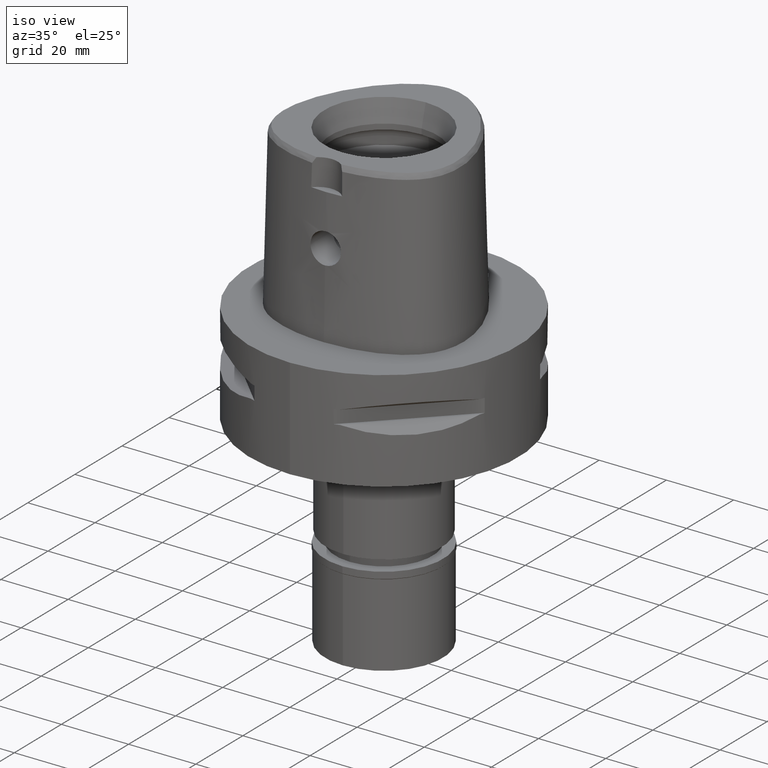
[diagram: clean part render]
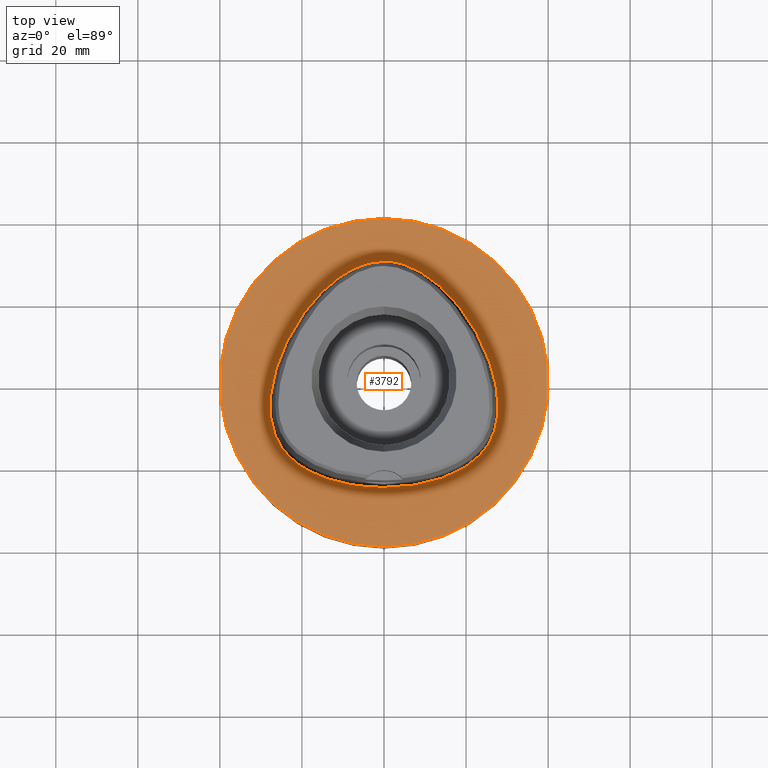
[diagram: tour spotlight — one face highlighted and labeled with its STEP entity id]
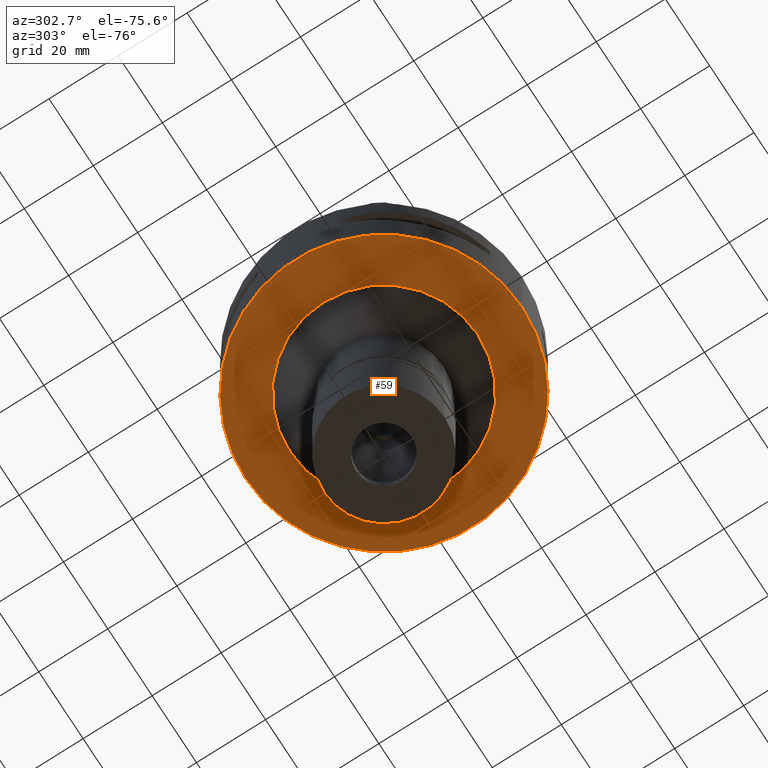
[diagram: tour spotlight — one face highlighted and labeled with its STEP entity id]
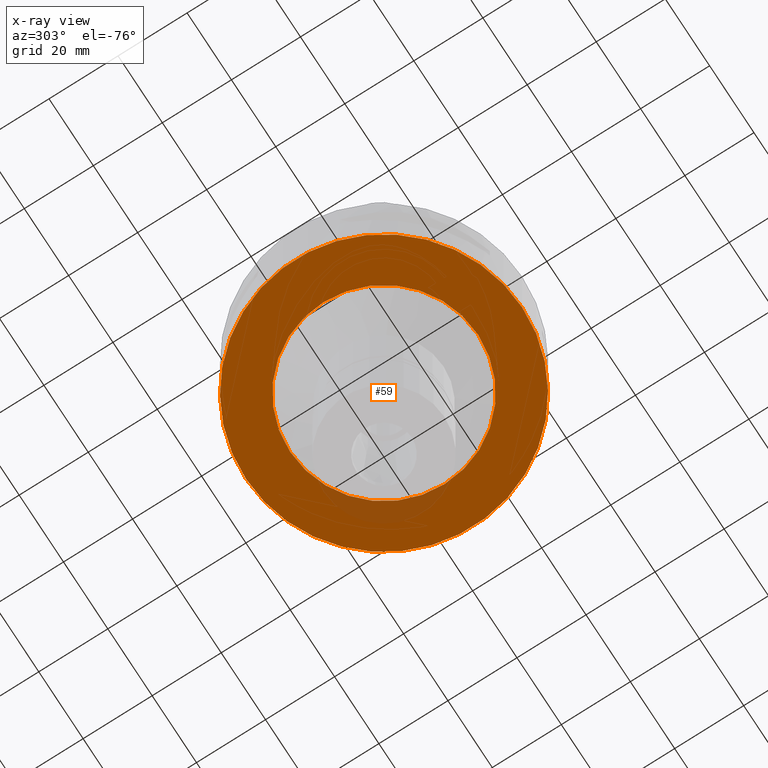
[diagram: x-ray of the same camera — body ghosted, this tour face saturated]
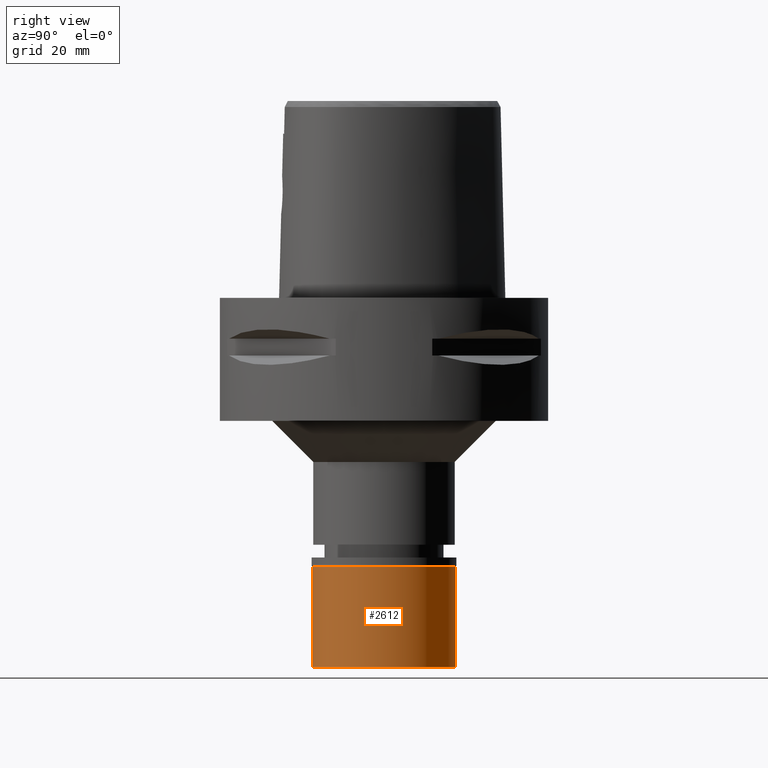
[diagram: tour spotlight — one face highlighted and labeled with its STEP entity id]
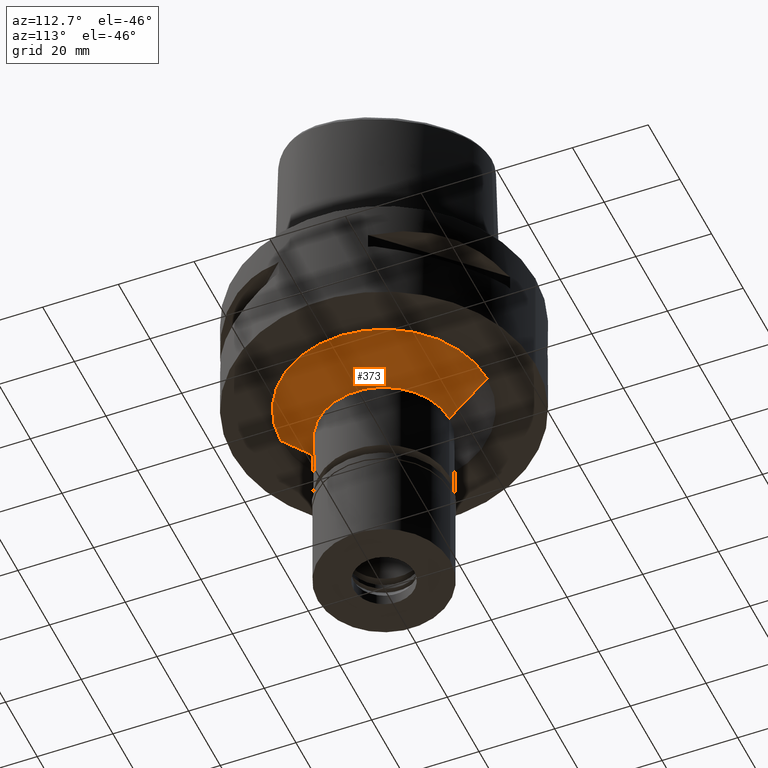
[diagram: tour spotlight — one face highlighted and labeled with its STEP entity id]
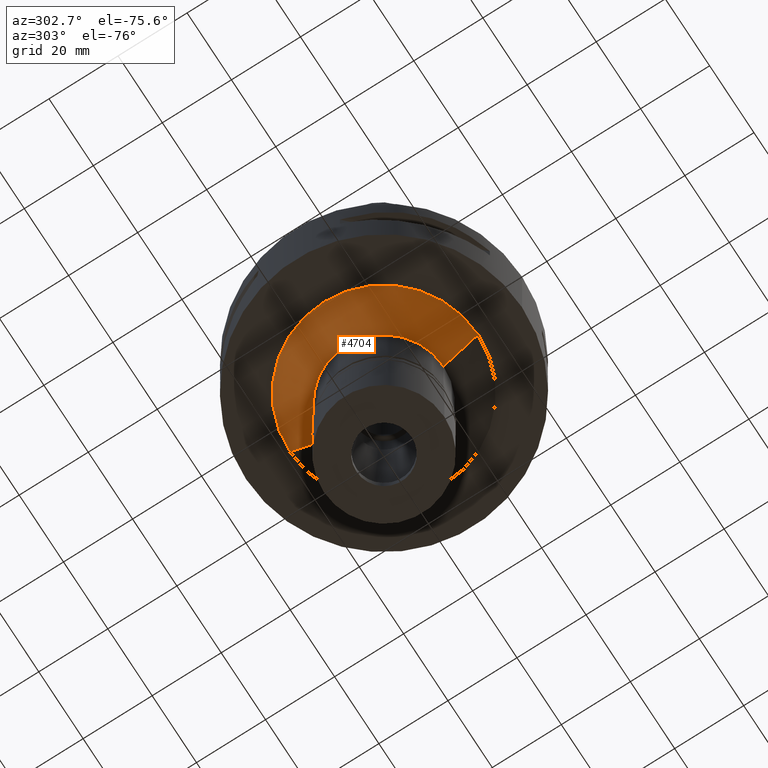
[diagram: tour spotlight — one face highlighted and labeled with its STEP entity id]
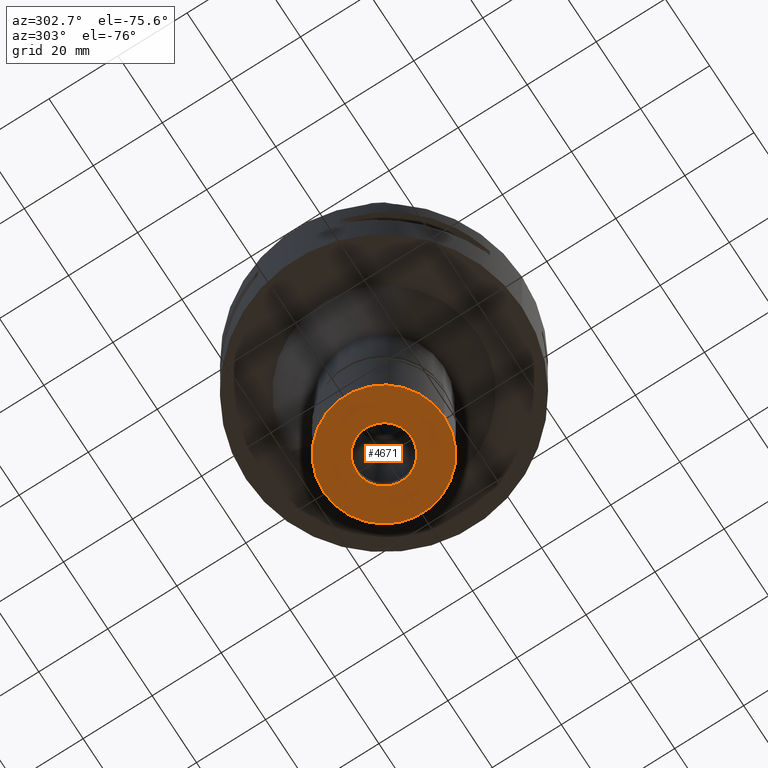
[diagram: tour spotlight — one face highlighted and labeled with its STEP entity id]
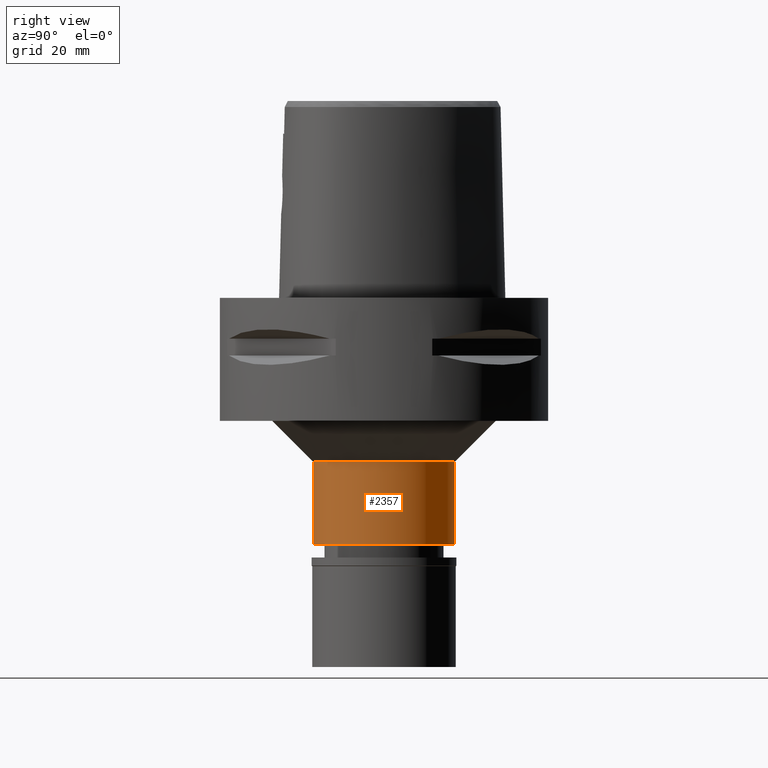
[diagram: tour spotlight — one face highlighted and labeled with its STEP entity id]
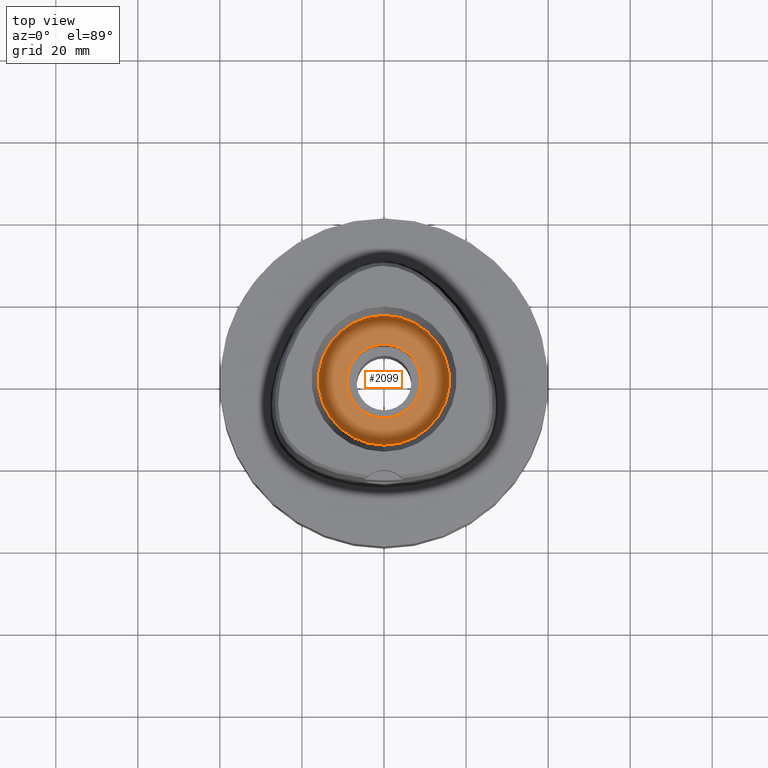
[diagram: tour spotlight — one face highlighted and labeled with its STEP entity id]
A machine part: a face-by-face anatomy tour. The part has 95 B-rep faces; the first image is the clean iso view, then the 8 largest visible faces are spotlighted one at a time (largest first), each with its STEP entity span.

Face 1 — top view, entity #3792. In plain terms, the highlighted planar face has unit normal (0, 0, -1).
Definition (entity closure, byte-faithful):
#254 = CARTESIAN_POINT ( 'NONE',  ( -24.77458489266242836, -16.12173825018081885, 2.094819869652431166E-06 ) ) ;
#320 = CARTESIAN_POINT ( 'NONE',  ( 27.85475986892180700, -5.337968750715377908, 1.137765652905239205E-06 ) ) ;
#396 = CARTESIAN_POINT ( 'NONE',  ( 3.149084868366645917, 29.34015622204375262, 1.137765652905239205E-06 ) ) ;
#585 = CARTESIAN_POINT ( 'NONE',  ( 0.0000000000000000000, -40.00000000000000000, 1.065814103639999922E-14 ) ) ;
#642 = CARTESIAN_POINT ( 'NONE',  ( -26.34912732414720082, -13.39455076017427793, 2.094819869652431166E-06 ) ) ;
#693 = CIRCLE ( 'NONE', #4600, 40.00000000000000000 ) ;
#730 = CARTESIAN_POINT ( 'NONE',  ( 21.42129057635563782, -19.59889646161694188, 1.137765652905239205E-06 ) ) ;
#1031 = CARTESIAN_POINT ( 'NONE',  ( -13.21796077085598853, 24.04386714781985290, 2.094819869652431166E-06 ) ) ;
#1070 = CARTESIAN_POINT ( 'NONE',  ( 15.29776365249906966, -22.96525387969474252, 1.137765652905239205E-06 ) ) ;
#1085 = CARTESIAN_POINT ( 'NONE',  ( -22.33885461213397861, 12.89734372370515914, 2.094819869652431166E-06 ) ) ;
#1150 = CARTESIAN_POINT ( 'NONE',  ( 13.21796078665989960, 24.04386716594249762, 1.137765652905239205E-06 ) ) ;
#1160 = CARTESIAN_POINT ( 'NONE',  ( -21.42129056182097457, -19.59889644248153218, 2.094819869652431166E-06 ) ) ;
#1168 = FACE_OUTER_BOUND ( 'NONE', #4169, .T. ) ;
#1186 = CARTESIAN_POINT ( 'NONE',  ( -11.74025984106811649, -24.13566401186329102, 2.094819869652431166E-06 ) ) ;
#1369 = CARTESIAN_POINT ( 'NONE',  ( -17.75297947105729790, 19.52218746656008719, 2.094819869652431166E-06 ) ) ;
#1416 = CARTESIAN_POINT ( 'NONE',  ( -3.149084863199506756, 29.34015619852094048, 2.094819869652431166E-06 ) ) ;
#1477 = CARTESIAN_POINT ( 'NONE',  ( 6.691850459915713145, -25.24546872174392220, 1.137765652905238994E-06 ) ) ;
#1507 = ORIENTED_EDGE ( 'NONE', *, *, #2330, .F. ) ;
#1530 = ORIENTED_EDGE ( 'NONE', *, *, #2038, .F. ) ;
#1539 = CARTESIAN_POINT ( 'NONE',  ( -1.924424295540000113E-11, -25.57499999999999929, 1.155372094292999947E-13 ) ) ;
#1656 = CARTESIAN_POINT ( 'NONE',  ( 0.0000000000000000000, 1.273020347714000000E-14, 1.065814103639999922E-14 ) ) ;
#1705 = DIRECTION ( 'NONE',  ( 0.0000000000000000000, 0.0000000000000000000, -1.000000000000000000 ) ) ;
#1797 = CARTESIAN_POINT ( 'NONE',  ( 4.354908547475000121E-11, 29.57499999998999840, 1.090979158864999866E-13 ) ) ;
#1823 = CARTESIAN_POINT ( 'NONE',  ( -23.43253024973375176, -17.76420406497843274, 2.094819869652431166E-06 ) ) ;
#1936 = EDGE_LOOP ( 'NONE', ( #2841, #1530 ) ) ;
#1949 = CARTESIAN_POINT ( 'NONE',  ( -6.691850456626842636, -25.24546869795837267, 2.094819869652431166E-06 ) ) ;
#2038 = EDGE_CURVE ( 'NONE', #2564, #4703, #2474, .T. ) ;
#2164 = CARTESIAN_POINT ( 'NONE',  ( -25.20914245119653074, 6.827421855213088087, 2.094819869652431166E-06 ) ) ;
#2254 = CARTESIAN_POINT ( 'NONE',  ( 2.676740183967310394, -25.57499997155843730, 1.137765652905239205E-06 ) ) ;
#2261 = CARTESIAN_POINT ( 'NONE',  ( 4.354908547475000121E-11, 29.57499999998999840, 1.090979158864999866E-13 ) ) ;
#2272 = CARTESIAN_POINT ( 'NONE',  ( -27.68378748623397811, -8.751933587140674931, 2.094819869652431166E-06 ) ) ;
#2306 = CARTESIAN_POINT ( 'NONE',  ( 25.20914247343074521, 6.827421864252392503, 1.137765652905239205E-06 ) ) ;
#2330 = EDGE_CURVE ( 'NONE', #2611, #4700, #693, .T. ) ;
#2351 = CARTESIAN_POINT ( 'NONE',  ( 0.0000000000000000000, 1.224646799146999965E-14, 0.0000000000000000000 ) ) ;
#2474 = B_SPLINE_CURVE_WITH_KNOTS ( 'NONE', 3,
 ( #3910, #2254, #1477, #3111, #1070, #4631, #730, #3886, #2686, #4197, #3010, #3399, #3805, #320, #4653, #5006, #2306, #2736, #4269, #1150, #2660, #3032, #396, #3830, #4930 ),
 .UNSPECIFIED., .F., .F.,
 ( 4, 1, 1, 1, 1, 1, 1, 1, 1, 1, 1, 1, 1, 1, 1, 1, 1, 1, 1, 1, 1, 1, 4 ),
 ( 0.0000000000000000000, 0.08333333333348000305, 0.1250000000001000033, 0.1666666666668000230, 0.2083333333334000115, 0.2500000000000000000, 0.2916666666666999919, 0.3125000000000000000, 0.3333333333333000081, 0.3541666666666999919, 0.3750000000000000000, 0.4166666666666000163, 0.4583333333332000326, 0.4999999999998999689, 0.5416666666666000163, 0.5833333333331000015, 0.6666666666664999852, 0.7499999999997000177, 0.8333333333329999704, 0.8749999999995999866, 0.9166666666663000340, 0.9583333333329000503, 1.000000000000000000 ),
 .UNSPECIFIED. ) ;
#2480 = AXIS2_PLACEMENT_3D ( 'NONE', #2351, #1705, #4776 ) ;
#2564 = VERTEX_POINT ( 'NONE', #2596 ) ;
#2596 = CARTESIAN_POINT ( 'NONE',  ( -1.924424295540000113E-11, -25.57499999999999929, 1.155372094292999947E-13 ) ) ;
#2611 = VERTEX_POINT ( 'NONE', #585 ) ;
#2649 = CARTESIAN_POINT ( 'NONE',  ( -1.049694954250744772, 29.57499994764077300, 2.094819869652431166E-06 ) ) ;
#2660 = CARTESIAN_POINT ( 'NONE',  ( 9.304563391730813038, 26.79191403815369199, 1.137765652905239205E-06 ) ) ;
#2686 = CARTESIAN_POINT ( 'NONE',  ( 24.77458491197820933, -16.12173826436910673, 1.137765652905239205E-06 ) ) ;
#2727 = FACE_BOUND ( 'NONE', #1936, .T. ) ;
#2736 = CARTESIAN_POINT ( 'NONE',  ( 22.33885463294038232, 12.89734373572265724, 1.137765652905239205E-06 ) ) ;
#2749 = DIRECTION ( 'NONE',  ( 0.0000000000000000000, 1.000000000000000000, 0.0000000000000000000 ) ) ;
#2812 = ORIENTED_EDGE ( 'NONE', *, *, #4347, .F. ) ;
#2841 = ORIENTED_EDGE ( 'NONE', *, *, #4145, .F. ) ;
#2972 = CARTESIAN_POINT ( 'NONE',  ( -27.85475984492790147, -5.337968751317453631, 2.094819869652431166E-06 ) ) ;
#3001 = CARTESIAN_POINT ( 'NONE',  ( -9.304563379213405483, 26.79191401767740999, 2.094819869652431166E-06 ) ) ;
#3010 = CARTESIAN_POINT ( 'NONE',  ( 26.34912734610190910, -13.39455076980321380, 1.137765652905239205E-06 ) ) ;
#3032 = CARTESIAN_POINT ( 'NONE',  ( 6.262496933729663873, 28.35083005178260152, 1.137765652905239205E-06 ) ) ;
#3048 = CARTESIAN_POINT ( 'NONE',  ( -15.29776364378016673, -22.96525385735406388, 2.094819869652431166E-06 ) ) ;
#3111 = CARTESIAN_POINT ( 'NONE',  ( 11.74025984732032768, -24.13566403500089663, 1.137765652905239205E-06 ) ) ;
#3116 = CARTESIAN_POINT ( 'NONE',  ( 0.0000000000000000000, 40.00000000000000000, 1.065814103639999922E-14 ) ) ;
#3215 = DIRECTION ( 'NONE',  ( 0.0000000000000000000, 0.0000000000000000000, -1.000000000000000000 ) ) ;
#3288 = B_SPLINE_CURVE_WITH_KNOTS ( 'NONE', 3,
 ( #1797, #2649, #1416, #3357, #3001, #1031, #1369, #1085, #2164, #4890, #4183, #2972, #2272, #4510, #642, #3764, #254, #1823, #1160, #3533, #3048, #1186, #1949, #4621, #1539 ),
 .UNSPECIFIED., .F., .F.,
 ( 4, 1, 1, 1, 1, 1, 1, 1, 1, 1, 1, 1, 1, 1, 1, 1, 1, 1, 1, 1, 1, 1, 4 ),
 ( 0.0000000000000000000, 0.04166666666721000056, 0.08333333333384000674, 0.1250000000004999889, 0.1666666666671000052, 0.2500000000004000134, 0.3333333333335999904, 0.4166666666668999985, 0.4583333333335000148, 0.5000000000001999512, 0.5416666666667999674, 0.5833333333333999837, 0.6250000000000000000, 0.6458333333333000637, 0.6666666666667000474, 0.6875000000000000000, 0.7083333333333000637, 0.7499999999999000799, 0.7916666666666000163, 0.8333333333332000326, 0.8749999999998000488, 0.9166666666664999852, 1.000000000000000000 ),
 .UNSPECIFIED. ) ;
#3357 = CARTESIAN_POINT ( 'NONE',  ( -6.262496924424714173, 28.35083002961578202, 2.094819869652431166E-06 ) ) ;
#3399 = CARTESIAN_POINT ( 'NONE',  ( 27.10051714624793817, -11.41106444530676356, 1.137765652905239205E-06 ) ) ;
#3436 = CARTESIAN_POINT ( 'NONE',  ( 0.0000000000000000000, 1.273020347714000000E-14, 1.065814103639999922E-14 ) ) ;
#3509 = DIRECTION ( 'NONE',  ( 0.0000000000000000000, 0.0000000000000000000, -1.000000000000000000 ) ) ;
#3533 = CARTESIAN_POINT ( 'NONE',  ( -18.55019646571943426, -21.45394526636055588, 2.094819869652431166E-06 ) ) ;
#3692 = AXIS2_PLACEMENT_3D ( 'NONE', #3436, #3509, #2749 ) ;
#3764 = CARTESIAN_POINT ( 'NONE',  ( -25.63812385315753772, -14.80217770814203782, 2.094819869652431166E-06 ) ) ;
#3770 = CIRCLE ( 'NONE', #3692, 40.00000000000000000 ) ;
#3792 = ADVANCED_FACE ( 'NONE', ( #1168, #2727 ), #4261, .F. ) ;
#3805 = CARTESIAN_POINT ( 'NONE',  ( 27.68378751008365768, -8.751933590160039245, 1.137765652905239205E-06 ) ) ;
#3830 = CARTESIAN_POINT ( 'NONE',  ( 1.049694956043448535, 29.57499997155296967, 1.137765652905239205E-06 ) ) ;
#3886 = CARTESIAN_POINT ( 'NONE',  ( 23.43253026698222641, -17.76420408169925125, 1.137765652905239205E-06 ) ) ;
#3910 = CARTESIAN_POINT ( 'NONE',  ( -1.924424295540000113E-11, -25.57499999999999929, 1.155372094292999947E-13 ) ) ;
#4145 = EDGE_CURVE ( 'NONE', #4703, #2564, #3288, .T. ) ;
#4169 = EDGE_LOOP ( 'NONE', ( #2812, #1507 ) ) ;
#4183 = CARTESIAN_POINT ( 'NONE',  ( -27.53737506671863144, -1.765625007924023215, 2.094819869652431166E-06 ) ) ;
#4197 = CARTESIAN_POINT ( 'NONE',  ( 25.63812387391595138, -14.80217772012314725, 1.137765652905239205E-06 ) ) ;
#4261 = PLANE ( 'NONE',  #2480 ) ;
#4269 = CARTESIAN_POINT ( 'NONE',  ( 17.75297948961959449, 19.52218748183531005, 1.137765652905239205E-06 ) ) ;
#4347 = EDGE_CURVE ( 'NONE', #4700, #2611, #3770, .T. ) ;
#4510 = CARTESIAN_POINT ( 'NONE',  ( -27.10051712314374228, -11.41106443872967091, 2.094819869652431166E-06 ) ) ;
#4600 = AXIS2_PLACEMENT_3D ( 'NONE', #1656, #3215, #4754 ) ;
#4621 = CARTESIAN_POINT ( 'NONE',  ( -2.676740182675434454, -25.57499994762766704, 2.094819869652431166E-06 ) ) ;
#4631 = CARTESIAN_POINT ( 'NONE',  ( 18.55019647718501474, -21.45394528744020235, 1.137765652905239205E-06 ) ) ;
#4653 = CARTESIAN_POINT ( 'NONE',  ( 27.53737509041933507, -1.765625004304363532, 1.137765652905239205E-06 ) ) ;
#4700 = VERTEX_POINT ( 'NONE', #3116 ) ;
#4703 = VERTEX_POINT ( 'NONE', #2261 ) ;
#4754 = DIRECTION ( 'NONE',  ( 0.0000000000000000000, -1.000000000000000000, 0.0000000000000000000 ) ) ;
#4776 = DIRECTION ( 'NONE',  ( 0.0000000000000000000, -1.000000000000000000, 0.0000000000000000000 ) ) ;
#4890 = CARTESIAN_POINT ( 'NONE',  ( -26.77222809200315012, 1.900468736539229209, 2.094819869652431166E-06 ) ) ;
#4930 = CARTESIAN_POINT ( 'NONE',  ( 4.354908547475000121E-11, 29.57499999998999840, 1.090979158864999866E-13 ) ) ;
#5006 = CARTESIAN_POINT ( 'NONE',  ( 26.77222811516928047, 1.900468742689392920, 1.137765652905239205E-06 ) ) ;

Face 2 — auxiliary view, entity #59. An x-ray twin of the same camera follows (body ghosted, this face saturated) — the face is partly hidden behind the body. In plain terms, the highlighted planar face has unit normal (0, 0, -1).
Definition (entity closure, byte-faithful):
#59 = ADVANCED_FACE ( 'NONE', ( #3329, #2431 ), #1625, .T. ) ;
#108 = AXIS2_PLACEMENT_3D ( 'NONE', #4739, #1258, #4057 ) ;
#394 = ORIENTED_EDGE ( 'NONE', *, *, #3538, .F. ) ;
#416 = AXIS2_PLACEMENT_3D ( 'NONE', #3753, #4879, #1405 ) ;
#537 = DIRECTION ( 'NONE',  ( 0.0000000000000000000, 0.0000000000000000000, 1.000000000000000000 ) ) ;
#572 = CIRCLE ( 'NONE', #416, 40.00000000000000000 ) ;
#608 = ORIENTED_EDGE ( 'NONE', *, *, #3981, .F. ) ;
#921 = DIRECTION ( 'NONE',  ( 0.0000000000000000000, -1.000000000000000000, 0.0000000000000000000 ) ) ;
#1069 = VERTEX_POINT ( 'NONE', #4002 ) ;
#1130 = EDGE_LOOP ( 'NONE', ( #608, #1641 ) ) ;
#1258 = DIRECTION ( 'NONE',  ( 0.0000000000000000000, 0.0000000000000000000, -1.000000000000000000 ) ) ;
#1405 = DIRECTION ( 'NONE',  ( 0.0000000000000000000, 1.000000000000000000, 0.0000000000000000000 ) ) ;
#1625 = PLANE ( 'NONE',  #4188 ) ;
#1641 = ORIENTED_EDGE ( 'NONE', *, *, #2980, .F. ) ;
#1765 = CARTESIAN_POINT ( 'NONE',  ( 0.0000000000000000000, -27.25000000000000000, -30.00000000000000000 ) ) ;
#1774 = DIRECTION ( 'NONE',  ( 0.0000000000000000000, 0.0000000000000000000, -1.000000000000000000 ) ) ;
#1938 = CARTESIAN_POINT ( 'NONE',  ( 0.0000000000000000000, -40.00000000000000000, -30.00000000000000000 ) ) ;
#2007 = CARTESIAN_POINT ( 'NONE',  ( 0.0000000000000000000, 0.0000000000000000000, -30.00000000000000000 ) ) ;
#2026 = VERTEX_POINT ( 'NONE', #1938 ) ;
#2057 = CIRCLE ( 'NONE', #3602, 40.00000000000000000 ) ;
#2223 = AXIS2_PLACEMENT_3D ( 'NONE', #4535, #1774, #4110 ) ;
#2343 = CIRCLE ( 'NONE', #108, 27.25000000000000000 ) ;
#2431 = FACE_BOUND ( 'NONE', #1130, .T. ) ;
#2858 = DIRECTION ( 'NONE',  ( 0.0000000000000000000, 0.0000000000000000000, -1.000000000000000000 ) ) ;
#2980 = EDGE_CURVE ( 'NONE', #3491, #1069, #2343, .T. ) ;
#3164 = EDGE_LOOP ( 'NONE', ( #394, #3398 ) ) ;
#3329 = FACE_OUTER_BOUND ( 'NONE', #3164, .T. ) ;
#3386 = EDGE_CURVE ( 'NONE', #2026, #3648, #2057, .T. ) ;
#3398 = ORIENTED_EDGE ( 'NONE', *, *, #3386, .F. ) ;
#3491 = VERTEX_POINT ( 'NONE', #1765 ) ;
#3538 = EDGE_CURVE ( 'NONE', #3648, #2026, #572, .T. ) ;
#3602 = AXIS2_PLACEMENT_3D ( 'NONE', #4403, #537, #921 ) ;
#3648 = VERTEX_POINT ( 'NONE', #3904 ) ;
#3753 = CARTESIAN_POINT ( 'NONE',  ( 0.0000000000000000000, 1.273020347714000000E-14, -30.00000000000000000 ) ) ;
#3904 = CARTESIAN_POINT ( 'NONE',  ( 0.0000000000000000000, 40.00000000000000000, -30.00000000000000000 ) ) ;
#3978 = DIRECTION ( 'NONE',  ( 0.0000000000000000000, -1.000000000000000000, 0.0000000000000000000 ) ) ;
#3981 = EDGE_CURVE ( 'NONE', #1069, #3491, #4400, .T. ) ;
#4002 = CARTESIAN_POINT ( 'NONE',  ( 0.0000000000000000000, 27.25000000000000000, -30.00000000000000000 ) ) ;
#4057 = DIRECTION ( 'NONE',  ( 0.0000000000000000000, -1.000000000000000000, 0.0000000000000000000 ) ) ;
#4110 = DIRECTION ( 'NONE',  ( 0.0000000000000000000, 1.000000000000000000, 0.0000000000000000000 ) ) ;
#4188 = AXIS2_PLACEMENT_3D ( 'NONE', #2007, #2858, #3978 ) ;
#4400 = CIRCLE ( 'NONE', #2223, 27.25000000000000000 ) ;
#4403 = CARTESIAN_POINT ( 'NONE',  ( 0.0000000000000000000, 1.273020347714000000E-14, -30.00000000000000000 ) ) ;
#4535 = CARTESIAN_POINT ( 'NONE',  ( 0.0000000000000000000, 0.0000000000000000000, -30.00000000000000000 ) ) ;
#4739 = CARTESIAN_POINT ( 'NONE',  ( 0.0000000000000000000, 0.0000000000000000000, -30.00000000000000000 ) ) ;
#4879 = DIRECTION ( 'NONE',  ( 0.0000000000000000000, 0.0000000000000000000, 1.000000000000000000 ) ) ;

Face 3 — right view, entity #2612. In plain terms, the highlighted cylindrical surface (partial cylindrical patch) has radius 17.5 mm, axis along (0, 0, -1).
Definition (entity closure, byte-faithful):
#30 = AXIS2_PLACEMENT_3D ( 'NONE', #383, #3487, #4686 ) ;
#200 = CARTESIAN_POINT ( 'NONE',  ( 0.0000000000000000000, 0.0000000000000000000, 0.0000000000000000000 ) ) ;
#330 = CARTESIAN_POINT ( 'NONE',  ( 0.0000000000000000000, 0.0000000000000000000, -2.100000000000000089 ) ) ;
#383 = CARTESIAN_POINT ( 'NONE',  ( 0.0000000000000000000, 0.0000000000000000000, -26.70000000000000284 ) ) ;
#531 = VECTOR ( 'NONE', #4672, 1000.000000000000000 ) ;
#663 = FACE_OUTER_BOUND ( 'NONE', #2685, .T. ) ;
#1010 = EDGE_CURVE ( 'NONE', #3845, #2258, #1092, .T. ) ;
#1092 = LINE ( 'NONE', #1935, #531 ) ;
#1178 = CARTESIAN_POINT ( 'NONE',  ( 0.0000000000000000000, -17.50000000000000000, -2.100000000000000089 ) ) ;
#1681 = AXIS2_PLACEMENT_3D ( 'NONE', #330, #1993, #4964 ) ;
#1771 = DIRECTION ( 'NONE',  ( 0.0000000000000000000, 0.0000000000000000000, -1.000000000000000000 ) ) ;
#1786 = ORIENTED_EDGE ( 'NONE', *, *, #2765, .T. ) ;
#1832 = ORIENTED_EDGE ( 'NONE', *, *, #1010, .F. ) ;
#1935 = CARTESIAN_POINT ( 'NONE',  ( 0.0000000000000000000, 17.50000000000000000, -2.100000000000000089 ) ) ;
#1993 = DIRECTION ( 'NONE',  ( 0.0000000000000000000, 0.0000000000000000000, -1.000000000000000000 ) ) ;
#2258 = VERTEX_POINT ( 'NONE', #3931 ) ;
#2262 = CIRCLE ( 'NONE', #30, 17.50000000000000000 ) ;
#2582 = AXIS2_PLACEMENT_3D ( 'NONE', #200, #1771, #3330 ) ;
#2612 = ADVANCED_FACE ( 'NONE', ( #663 ), #3710, .T. ) ;
#2685 = EDGE_LOOP ( 'NONE', ( #1786, #3475, #3754, #1832 ) ) ;
#2705 = EDGE_CURVE ( 'NONE', #4061, #2258, #2262, .T. ) ;
#2765 = EDGE_CURVE ( 'NONE', #3845, #3929, #4270, .T. ) ;
#3330 = DIRECTION ( 'NONE',  ( 0.0000000000000000000, -1.000000000000000000, 0.0000000000000000000 ) ) ;
#3475 = ORIENTED_EDGE ( 'NONE', *, *, #4674, .T. ) ;
#3487 = DIRECTION ( 'NONE',  ( 0.0000000000000000000, 0.0000000000000000000, 1.000000000000000000 ) ) ;
#3710 = CYLINDRICAL_SURFACE ( 'NONE', #2582, 17.50000000000000000 ) ;
#3754 = ORIENTED_EDGE ( 'NONE', *, *, #2705, .T. ) ;
#3819 = CARTESIAN_POINT ( 'NONE',  ( 0.0000000000000000000, -17.50000000000000000, -26.70000000000000284 ) ) ;
#3835 = LINE ( 'NONE', #1178, #4405 ) ;
#3845 = VERTEX_POINT ( 'NONE', #4362 ) ;
#3929 = VERTEX_POINT ( 'NONE', #3999 ) ;
#3931 = CARTESIAN_POINT ( 'NONE',  ( 0.0000000000000000000, 17.50000000000000000, -26.70000000000000284 ) ) ;
#3999 = CARTESIAN_POINT ( 'NONE',  ( 0.0000000000000000000, -17.50000000000000000, -2.100000000000000089 ) ) ;
#4061 = VERTEX_POINT ( 'NONE', #3819 ) ;
#4270 = CIRCLE ( 'NONE', #1681, 17.50000000000000000 ) ;
#4362 = CARTESIAN_POINT ( 'NONE',  ( 0.0000000000000000000, 17.50000000000000000, -2.100000000000000089 ) ) ;
#4405 = VECTOR ( 'NONE', #4613, 1000.000000000000000 ) ;
#4613 = DIRECTION ( 'NONE',  ( 0.0000000000000000000, 0.0000000000000000000, -1.000000000000000000 ) ) ;
#4672 = DIRECTION ( 'NONE',  ( 0.0000000000000000000, 0.0000000000000000000, -1.000000000000000000 ) ) ;
#4674 = EDGE_CURVE ( 'NONE', #3929, #4061, #3835, .T. ) ;
#4686 = DIRECTION ( 'NONE',  ( 0.0000000000000000000, -1.000000000000000000, 0.0000000000000000000 ) ) ;
#4964 = DIRECTION ( 'NONE',  ( 0.0000000000000000000, 1.000000000000000000, 0.0000000000000000000 ) ) ;

Face 4 — auxiliary view, entity #373. In plain terms, the highlighted conical surface has half-angle 45 deg.
Definition (entity closure, byte-faithful):
#202 = CIRCLE ( 'NONE', #4682, 17.25000000000000000 ) ;
#225 = DIRECTION ( 'NONE',  ( 0.0000000000000000000, 1.000000000000000000, 0.0000000000000000000 ) ) ;
#232 = CARTESIAN_POINT ( 'NONE',  ( 0.0000000000000000000, 0.0000000000000000000, -40.00000000000000000 ) ) ;
#373 = ADVANCED_FACE ( 'NONE', ( #1464 ), #4349, .T. ) ;
#671 = DIRECTION ( 'NONE',  ( 0.0000000000000000000, 0.0000000000000000000, -1.000000000000000000 ) ) ;
#706 = ORIENTED_EDGE ( 'NONE', *, *, #3262, .F. ) ;
#962 = DIRECTION ( 'NONE',  ( 0.0000000000000000000, 1.000000000000000000, 0.0000000000000000000 ) ) ;
#1052 = VERTEX_POINT ( 'NONE', #1680 ) ;
#1069 = VERTEX_POINT ( 'NONE', #4002 ) ;
#1282 = EDGE_CURVE ( 'NONE', #1963, #1052, #202, .T. ) ;
#1410 = CARTESIAN_POINT ( 'NONE',  ( 0.0000000000000000000, 0.0000000000000000000, -35.00000000000000000 ) ) ;
#1464 = FACE_OUTER_BOUND ( 'NONE', #2722, .T. ) ;
#1546 = EDGE_CURVE ( 'NONE', #3491, #1052, #1841, .T. ) ;
#1680 = CARTESIAN_POINT ( 'NONE',  ( 0.0000000000000000000, -17.25000000000000000, -40.00000000000000000 ) ) ;
#1765 = CARTESIAN_POINT ( 'NONE',  ( 0.0000000000000000000, -27.25000000000000000, -30.00000000000000000 ) ) ;
#1774 = DIRECTION ( 'NONE',  ( 0.0000000000000000000, 0.0000000000000000000, -1.000000000000000000 ) ) ;
#1815 = CARTESIAN_POINT ( 'NONE',  ( 0.0000000000000000000, -27.25000000000000000, -30.00000000000000000 ) ) ;
#1841 = LINE ( 'NONE', #1815, #4441 ) ;
#1963 = VERTEX_POINT ( 'NONE', #2493 ) ;
#2159 = DIRECTION ( 'NONE',  ( 0.0000000000000000000, 0.7071067811865474617, -0.7071067811865474617 ) ) ;
#2178 = CARTESIAN_POINT ( 'NONE',  ( 0.0000000000000000000, 27.25000000000000000, -30.00000000000000000 ) ) ;
#2223 = AXIS2_PLACEMENT_3D ( 'NONE', #4535, #1774, #4110 ) ;
#2493 = CARTESIAN_POINT ( 'NONE',  ( 0.0000000000000000000, 17.25000000000000000, -40.00000000000000000 ) ) ;
#2537 = ORIENTED_EDGE ( 'NONE', *, *, #1282, .F. ) ;
#2587 = LINE ( 'NONE', #2178, #3523 ) ;
#2722 = EDGE_LOOP ( 'NONE', ( #4320, #2797, #2537, #706 ) ) ;
#2797 = ORIENTED_EDGE ( 'NONE', *, *, #1546, .T. ) ;
#3262 = EDGE_CURVE ( 'NONE', #1069, #1963, #2587, .T. ) ;
#3309 = AXIS2_PLACEMENT_3D ( 'NONE', #1410, #4531, #225 ) ;
#3491 = VERTEX_POINT ( 'NONE', #1765 ) ;
#3523 = VECTOR ( 'NONE', #3729, 1000.000000000000114 ) ;
#3729 = DIRECTION ( 'NONE',  ( 0.0000000000000000000, -0.7071067811865474617, -0.7071067811865474617 ) ) ;
#3981 = EDGE_CURVE ( 'NONE', #1069, #3491, #4400, .T. ) ;
#4002 = CARTESIAN_POINT ( 'NONE',  ( 0.0000000000000000000, 27.25000000000000000, -30.00000000000000000 ) ) ;
#4110 = DIRECTION ( 'NONE',  ( 0.0000000000000000000, 1.000000000000000000, 0.0000000000000000000 ) ) ;
#4320 = ORIENTED_EDGE ( 'NONE', *, *, #3981, .T. ) ;
#4349 = CONICAL_SURFACE ( 'NONE', #3309, 22.25000000000000000, 0.7853981633972997312 ) ;
#4400 = CIRCLE ( 'NONE', #2223, 27.25000000000000000 ) ;
#4441 = VECTOR ( 'NONE', #2159, 1000.000000000000114 ) ;
#4531 = DIRECTION ( 'NONE',  ( 0.0000000000000000000, 0.0000000000000000000, 1.000000000000000000 ) ) ;
#4535 = CARTESIAN_POINT ( 'NONE',  ( 0.0000000000000000000, 0.0000000000000000000, -30.00000000000000000 ) ) ;
#4682 = AXIS2_PLACEMENT_3D ( 'NONE', #232, #671, #962 ) ;

Face 5 — auxiliary view, entity #4704. In plain terms, the highlighted conical surface has half-angle 45 deg.
Definition (entity closure, byte-faithful):
#22 = CARTESIAN_POINT ( 'NONE',  ( 0.0000000000000000000, 0.0000000000000000000, -40.00000000000000000 ) ) ;
#108 = AXIS2_PLACEMENT_3D ( 'NONE', #4739, #1258, #4057 ) ;
#325 = DIRECTION ( 'NONE',  ( 0.0000000000000000000, 1.000000000000000000, 0.0000000000000000000 ) ) ;
#728 = DIRECTION ( 'NONE',  ( 0.0000000000000000000, 0.0000000000000000000, -1.000000000000000000 ) ) ;
#906 = EDGE_CURVE ( 'NONE', #1052, #1963, #3798, .T. ) ;
#1052 = VERTEX_POINT ( 'NONE', #1680 ) ;
#1069 = VERTEX_POINT ( 'NONE', #4002 ) ;
#1162 = ORIENTED_EDGE ( 'NONE', *, *, #1546, .F. ) ;
#1258 = DIRECTION ( 'NONE',  ( 0.0000000000000000000, 0.0000000000000000000, -1.000000000000000000 ) ) ;
#1323 = CONICAL_SURFACE ( 'NONE', #4165, 22.25000000000000000, 0.7853981633972997312 ) ;
#1546 = EDGE_CURVE ( 'NONE', #3491, #1052, #1841, .T. ) ;
#1594 = AXIS2_PLACEMENT_3D ( 'NONE', #22, #728, #5005 ) ;
#1680 = CARTESIAN_POINT ( 'NONE',  ( 0.0000000000000000000, -17.25000000000000000, -40.00000000000000000 ) ) ;
#1765 = CARTESIAN_POINT ( 'NONE',  ( 0.0000000000000000000, -27.25000000000000000, -30.00000000000000000 ) ) ;
#1815 = CARTESIAN_POINT ( 'NONE',  ( 0.0000000000000000000, -27.25000000000000000, -30.00000000000000000 ) ) ;
#1841 = LINE ( 'NONE', #1815, #4441 ) ;
#1891 = FACE_OUTER_BOUND ( 'NONE', #4722, .T. ) ;
#1963 = VERTEX_POINT ( 'NONE', #2493 ) ;
#2159 = DIRECTION ( 'NONE',  ( 0.0000000000000000000, 0.7071067811865474617, -0.7071067811865474617 ) ) ;
#2178 = CARTESIAN_POINT ( 'NONE',  ( 0.0000000000000000000, 27.25000000000000000, -30.00000000000000000 ) ) ;
#2343 = CIRCLE ( 'NONE', #108, 27.25000000000000000 ) ;
#2493 = CARTESIAN_POINT ( 'NONE',  ( 0.0000000000000000000, 17.25000000000000000, -40.00000000000000000 ) ) ;
#2587 = LINE ( 'NONE', #2178, #3523 ) ;
#2740 = CARTESIAN_POINT ( 'NONE',  ( 0.0000000000000000000, 0.0000000000000000000, -35.00000000000000000 ) ) ;
#2980 = EDGE_CURVE ( 'NONE', #3491, #1069, #2343, .T. ) ;
#3255 = ORIENTED_EDGE ( 'NONE', *, *, #3262, .T. ) ;
#3262 = EDGE_CURVE ( 'NONE', #1069, #1963, #2587, .T. ) ;
#3429 = DIRECTION ( 'NONE',  ( 0.0000000000000000000, 0.0000000000000000000, 1.000000000000000000 ) ) ;
#3491 = VERTEX_POINT ( 'NONE', #1765 ) ;
#3523 = VECTOR ( 'NONE', #3729, 1000.000000000000114 ) ;
#3724 = ORIENTED_EDGE ( 'NONE', *, *, #2980, .T. ) ;
#3729 = DIRECTION ( 'NONE',  ( 0.0000000000000000000, -0.7071067811865474617, -0.7071067811865474617 ) ) ;
#3798 = CIRCLE ( 'NONE', #1594, 17.25000000000000000 ) ;
#4002 = CARTESIAN_POINT ( 'NONE',  ( 0.0000000000000000000, 27.25000000000000000, -30.00000000000000000 ) ) ;
#4057 = DIRECTION ( 'NONE',  ( 0.0000000000000000000, -1.000000000000000000, 0.0000000000000000000 ) ) ;
#4165 = AXIS2_PLACEMENT_3D ( 'NONE', #2740, #3429, #325 ) ;
#4321 = ORIENTED_EDGE ( 'NONE', *, *, #906, .F. ) ;
#4441 = VECTOR ( 'NONE', #2159, 1000.000000000000114 ) ;
#4704 = ADVANCED_FACE ( 'NONE', ( #1891 ), #1323, .T. ) ;
#4722 = EDGE_LOOP ( 'NONE', ( #4321, #1162, #3724, #3255 ) ) ;
#4739 = CARTESIAN_POINT ( 'NONE',  ( 0.0000000000000000000, 0.0000000000000000000, -30.00000000000000000 ) ) ;
#5005 = DIRECTION ( 'NONE',  ( 0.0000000000000000000, -1.000000000000000000, 0.0000000000000000000 ) ) ;

Face 6 — auxiliary view, entity #4671. In plain terms, the highlighted planar face has unit normal (0, 0, -1).
Definition (entity closure, byte-faithful):
#30 = AXIS2_PLACEMENT_3D ( 'NONE', #383, #3487, #4686 ) ;
#120 = DIRECTION ( 'NONE',  ( 0.0000000000000000000, 1.000000000000000000, 0.0000000000000000000 ) ) ;
#383 = CARTESIAN_POINT ( 'NONE',  ( 0.0000000000000000000, 0.0000000000000000000, -26.70000000000000284 ) ) ;
#395 = ORIENTED_EDGE ( 'NONE', *, *, #2705, .F. ) ;
#776 = DIRECTION ( 'NONE',  ( 0.0000000000000000000, -1.000000000000000000, 0.0000000000000000000 ) ) ;
#839 = CARTESIAN_POINT ( 'NONE',  ( 0.0000000000000000000, 8.000000000000000000, -26.70000000000000284 ) ) ;
#990 = AXIS2_PLACEMENT_3D ( 'NONE', #1965, #4273, #3892 ) ;
#1025 = CARTESIAN_POINT ( 'NONE',  ( 0.0000000000000000000, -8.000000000000000000, -26.70000000000000284 ) ) ;
#1038 = EDGE_CURVE ( 'NONE', #1709, #2932, #1435, .T. ) ;
#1119 = AXIS2_PLACEMENT_3D ( 'NONE', #2625, #2168, #4114 ) ;
#1170 = DIRECTION ( 'NONE',  ( 0.0000000000000000000, 0.0000000000000000000, -1.000000000000000000 ) ) ;
#1237 = DIRECTION ( 'NONE',  ( 0.0000000000000000000, 0.0000000000000000000, 1.000000000000000000 ) ) ;
#1295 = EDGE_CURVE ( 'NONE', #2932, #1709, #4274, .T. ) ;
#1421 = EDGE_CURVE ( 'NONE', #2258, #4061, #2010, .T. ) ;
#1435 = CIRCLE ( 'NONE', #4677, 8.000000000000000000 ) ;
#1709 = VERTEX_POINT ( 'NONE', #1025 ) ;
#1937 = EDGE_LOOP ( 'NONE', ( #2376, #2473 ) ) ;
#1965 = CARTESIAN_POINT ( 'NONE',  ( 0.0000000000000000000, 0.0000000000000000000, -26.70000000000000284 ) ) ;
#2010 = CIRCLE ( 'NONE', #4605, 17.50000000000000000 ) ;
#2112 = CARTESIAN_POINT ( 'NONE',  ( 0.0000000000000000000, 0.0000000000000000000, -26.70000000000000284 ) ) ;
#2168 = DIRECTION ( 'NONE',  ( 0.0000000000000000000, 0.0000000000000000000, -1.000000000000000000 ) ) ;
#2258 = VERTEX_POINT ( 'NONE', #3931 ) ;
#2262 = CIRCLE ( 'NONE', #30, 17.50000000000000000 ) ;
#2376 = ORIENTED_EDGE ( 'NONE', *, *, #1295, .F. ) ;
#2473 = ORIENTED_EDGE ( 'NONE', *, *, #1038, .F. ) ;
#2625 = CARTESIAN_POINT ( 'NONE',  ( 0.0000000000000000000, 0.0000000000000000000, -26.70000000000000284 ) ) ;
#2705 = EDGE_CURVE ( 'NONE', #4061, #2258, #2262, .T. ) ;
#2932 = VERTEX_POINT ( 'NONE', #839 ) ;
#3487 = DIRECTION ( 'NONE',  ( 0.0000000000000000000, 0.0000000000000000000, 1.000000000000000000 ) ) ;
#3497 = CARTESIAN_POINT ( 'NONE',  ( 0.0000000000000000000, 0.0000000000000000000, -26.70000000000000284 ) ) ;
#3812 = FACE_OUTER_BOUND ( 'NONE', #5008, .T. ) ;
#3819 = CARTESIAN_POINT ( 'NONE',  ( 0.0000000000000000000, -17.50000000000000000, -26.70000000000000284 ) ) ;
#3892 = DIRECTION ( 'NONE',  ( 0.0000000000000000000, -1.000000000000000000, 0.0000000000000000000 ) ) ;
#3931 = CARTESIAN_POINT ( 'NONE',  ( 0.0000000000000000000, 17.50000000000000000, -26.70000000000000284 ) ) ;
#4061 = VERTEX_POINT ( 'NONE', #3819 ) ;
#4114 = DIRECTION ( 'NONE',  ( 0.0000000000000000000, 1.000000000000000000, 0.0000000000000000000 ) ) ;
#4174 = ORIENTED_EDGE ( 'NONE', *, *, #1421, .F. ) ;
#4273 = DIRECTION ( 'NONE',  ( 0.0000000000000000000, 0.0000000000000000000, -1.000000000000000000 ) ) ;
#4274 = CIRCLE ( 'NONE', #1119, 8.000000000000000000 ) ;
#4605 = AXIS2_PLACEMENT_3D ( 'NONE', #2112, #1237, #120 ) ;
#4656 = FACE_BOUND ( 'NONE', #1937, .T. ) ;
#4671 = ADVANCED_FACE ( 'NONE', ( #3812, #4656 ), #5010, .T. ) ;
#4677 = AXIS2_PLACEMENT_3D ( 'NONE', #3497, #1170, #776 ) ;
#4686 = DIRECTION ( 'NONE',  ( 0.0000000000000000000, -1.000000000000000000, 0.0000000000000000000 ) ) ;
#5008 = EDGE_LOOP ( 'NONE', ( #4174, #395 ) ) ;
#5010 = PLANE ( 'NONE',  #990 ) ;

Face 7 — right view, entity #2357. In plain terms, the highlighted cylindrical surface (partial cylindrical patch) has radius 17.25 mm, axis along (0, 0, -1).
Definition (entity closure, byte-faithful):
#42 = DIRECTION ( 'NONE',  ( 0.0000000000000000000, 0.0000000000000000000, -1.000000000000000000 ) ) ;
#202 = CIRCLE ( 'NONE', #4682, 17.25000000000000000 ) ;
#232 = CARTESIAN_POINT ( 'NONE',  ( 0.0000000000000000000, 0.0000000000000000000, -40.00000000000000000 ) ) ;
#248 = DIRECTION ( 'NONE',  ( 0.0000000000000000000, -1.000000000000000000, 0.0000000000000000000 ) ) ;
#360 = CARTESIAN_POINT ( 'NONE',  ( 0.0000000000000000000, -17.25000000000000000, -60.19999999999999574 ) ) ;
#542 = DIRECTION ( 'NONE',  ( 0.0000000000000000000, 0.0000000000000000000, -1.000000000000000000 ) ) ;
#592 = DIRECTION ( 'NONE',  ( 0.0000000000000000000, 0.0000000000000000000, -1.000000000000000000 ) ) ;
#609 = DIRECTION ( 'NONE',  ( 0.0000000000000000000, 0.0000000000000000000, 1.000000000000000000 ) ) ;
#671 = DIRECTION ( 'NONE',  ( 0.0000000000000000000, 0.0000000000000000000, -1.000000000000000000 ) ) ;
#698 = CARTESIAN_POINT ( 'NONE',  ( 0.0000000000000000000, 1.273020347714000000E-14, 3.950000000000000178 ) ) ;
#962 = DIRECTION ( 'NONE',  ( 0.0000000000000000000, 1.000000000000000000, 0.0000000000000000000 ) ) ;
#1052 = VERTEX_POINT ( 'NONE', #1680 ) ;
#1086 = VERTEX_POINT ( 'NONE', #3213 ) ;
#1198 = VECTOR ( 'NONE', #542, 1000.000000000000000 ) ;
#1236 = EDGE_LOOP ( 'NONE', ( #3138, #4297, #3957, #4652 ) ) ;
#1260 = CARTESIAN_POINT ( 'NONE',  ( 0.0000000000000000000, 17.25000000000000000, -40.00000000000000000 ) ) ;
#1281 = CIRCLE ( 'NONE', #1359, 17.25000000000000000 ) ;
#1282 = EDGE_CURVE ( 'NONE', #1963, #1052, #202, .T. ) ;
#1359 = AXIS2_PLACEMENT_3D ( 'NONE', #4152, #609, #248 ) ;
#1432 = EDGE_CURVE ( 'NONE', #1052, #4450, #2503, .T. ) ;
#1469 = FACE_OUTER_BOUND ( 'NONE', #1236, .T. ) ;
#1680 = CARTESIAN_POINT ( 'NONE',  ( 0.0000000000000000000, -17.25000000000000000, -40.00000000000000000 ) ) ;
#1704 = EDGE_CURVE ( 'NONE', #4450, #1086, #1281, .T. ) ;
#1963 = VERTEX_POINT ( 'NONE', #2493 ) ;
#2143 = VECTOR ( 'NONE', #42, 1000.000000000000000 ) ;
#2357 = ADVANCED_FACE ( 'NONE', ( #1469 ), #3023, .T. ) ;
#2493 = CARTESIAN_POINT ( 'NONE',  ( 0.0000000000000000000, 17.25000000000000000, -40.00000000000000000 ) ) ;
#2503 = LINE ( 'NONE', #3229, #1198 ) ;
#3002 = DIRECTION ( 'NONE',  ( 0.0000000000000000000, -1.000000000000000000, 0.0000000000000000000 ) ) ;
#3023 = CYLINDRICAL_SURFACE ( 'NONE', #4444, 17.25000000000000000 ) ;
#3138 = ORIENTED_EDGE ( 'NONE', *, *, #1282, .T. ) ;
#3213 = CARTESIAN_POINT ( 'NONE',  ( 0.0000000000000000000, 17.25000000000000000, -60.19999999999999574 ) ) ;
#3229 = CARTESIAN_POINT ( 'NONE',  ( 0.0000000000000000000, -17.25000000000000000, -40.00000000000000000 ) ) ;
#3421 = EDGE_CURVE ( 'NONE', #1963, #1086, #3943, .T. ) ;
#3943 = LINE ( 'NONE', #1260, #2143 ) ;
#3957 = ORIENTED_EDGE ( 'NONE', *, *, #1704, .T. ) ;
#4152 = CARTESIAN_POINT ( 'NONE',  ( 0.0000000000000000000, 1.273020347714000000E-14, -60.19999999999999574 ) ) ;
#4297 = ORIENTED_EDGE ( 'NONE', *, *, #1432, .T. ) ;
#4444 = AXIS2_PLACEMENT_3D ( 'NONE', #698, #592, #3002 ) ;
#4450 = VERTEX_POINT ( 'NONE', #360 ) ;
#4652 = ORIENTED_EDGE ( 'NONE', *, *, #3421, .F. ) ;
#4682 = AXIS2_PLACEMENT_3D ( 'NONE', #232, #671, #962 ) ;

Face 8 — top view, entity #2099. In plain terms, the highlighted planar face has unit normal (0, 0, -1).
Definition (entity closure, byte-faithful):
#177 = CIRCLE ( 'NONE', #751, 9.000000000000000000 ) ;
#307 = DIRECTION ( 'NONE',  ( 0.0000000000000000000, 0.0000000000000000000, 1.000000000000000000 ) ) ;
#347 = DIRECTION ( 'NONE',  ( 0.0000000000000000000, 0.0000000000000000000, -1.000000000000000000 ) ) ;
#442 = EDGE_CURVE ( 'NONE', #1422, #5009, #3716, .T. ) ;
#448 = AXIS2_PLACEMENT_3D ( 'NONE', #2161, #2267, #4481 ) ;
#453 = EDGE_LOOP ( 'NONE', ( #1806, #914 ) ) ;
#744 = CIRCLE ( 'NONE', #1730, 16.00000000000000000 ) ;
#751 = AXIS2_PLACEMENT_3D ( 'NONE', #3737, #1744, #4530 ) ;
#860 = AXIS2_PLACEMENT_3D ( 'NONE', #2266, #307, #3918 ) ;
#914 = ORIENTED_EDGE ( 'NONE', *, *, #442, .F. ) ;
#1124 = FACE_BOUND ( 'NONE', #453, .T. ) ;
#1311 = CARTESIAN_POINT ( 'NONE',  ( 0.0000000000000000000, 9.000000000000000000, 20.00000000000000000 ) ) ;
#1365 = AXIS2_PLACEMENT_3D ( 'NONE', #4607, #347, #1911 ) ;
#1422 = VERTEX_POINT ( 'NONE', #1311 ) ;
#1430 = EDGE_LOOP ( 'NONE', ( #2297, #2760 ) ) ;
#1593 = CIRCLE ( 'NONE', #448, 16.00000000000000000 ) ;
#1730 = AXIS2_PLACEMENT_3D ( 'NONE', #5023, #2005, #3156 ) ;
#1744 = DIRECTION ( 'NONE',  ( 0.0000000000000000000, 0.0000000000000000000, 1.000000000000000000 ) ) ;
#1806 = ORIENTED_EDGE ( 'NONE', *, *, #4949, .F. ) ;
#1885 = FACE_OUTER_BOUND ( 'NONE', #1430, .T. ) ;
#1911 = DIRECTION ( 'NONE',  ( 0.0000000000000000000, -1.000000000000000000, 0.0000000000000000000 ) ) ;
#2005 = DIRECTION ( 'NONE',  ( 0.0000000000000000000, 0.0000000000000000000, -1.000000000000000000 ) ) ;
#2058 = CARTESIAN_POINT ( 'NONE',  ( 0.0000000000000000000, 16.00000000000000000, 20.00000000000000000 ) ) ;
#2099 = ADVANCED_FACE ( 'NONE', ( #1885, #1124 ), #3060, .F. ) ;
#2161 = CARTESIAN_POINT ( 'NONE',  ( 0.0000000000000000000, 0.0000000000000000000, 20.00000000000000000 ) ) ;
#2266 = CARTESIAN_POINT ( 'NONE',  ( 0.0000000000000000000, 0.0000000000000000000, 20.00000000000000000 ) ) ;
#2267 = DIRECTION ( 'NONE',  ( 0.0000000000000000000, 0.0000000000000000000, -1.000000000000000000 ) ) ;
#2297 = ORIENTED_EDGE ( 'NONE', *, *, #2552, .F. ) ;
#2552 = EDGE_CURVE ( 'NONE', #4126, #3832, #1593, .T. ) ;
#2760 = ORIENTED_EDGE ( 'NONE', *, *, #3725, .F. ) ;
#3060 = PLANE ( 'NONE',  #1365 ) ;
#3156 = DIRECTION ( 'NONE',  ( 0.0000000000000000000, 1.000000000000000000, 0.0000000000000000000 ) ) ;
#3716 = CIRCLE ( 'NONE', #860, 9.000000000000000000 ) ;
#3725 = EDGE_CURVE ( 'NONE', #3832, #4126, #744, .T. ) ;
#3737 = CARTESIAN_POINT ( 'NONE',  ( 0.0000000000000000000, 0.0000000000000000000, 20.00000000000000000 ) ) ;
#3742 = CARTESIAN_POINT ( 'NONE',  ( 0.0000000000000000000, -16.00000000000000000, 20.00000000000000000 ) ) ;
#3832 = VERTEX_POINT ( 'NONE', #2058 ) ;
#3918 = DIRECTION ( 'NONE',  ( 0.0000000000000000000, 1.000000000000000000, 0.0000000000000000000 ) ) ;
#4081 = CARTESIAN_POINT ( 'NONE',  ( 0.0000000000000000000, -9.000000000000000000, 20.00000000000000000 ) ) ;
#4126 = VERTEX_POINT ( 'NONE', #3742 ) ;
#4481 = DIRECTION ( 'NONE',  ( 0.0000000000000000000, -1.000000000000000000, 0.0000000000000000000 ) ) ;
#4530 = DIRECTION ( 'NONE',  ( 0.0000000000000000000, -1.000000000000000000, 0.0000000000000000000 ) ) ;
#4607 = CARTESIAN_POINT ( 'NONE',  ( 0.0000000000000000000, 0.0000000000000000000, 20.00000000000000000 ) ) ;
#4949 = EDGE_CURVE ( 'NONE', #5009, #1422, #177, .T. ) ;
#5009 = VERTEX_POINT ( 'NONE', #4081 ) ;
#5023 = CARTESIAN_POINT ( 'NONE',  ( 0.0000000000000000000, 0.0000000000000000000, 20.00000000000000000 ) ) ;